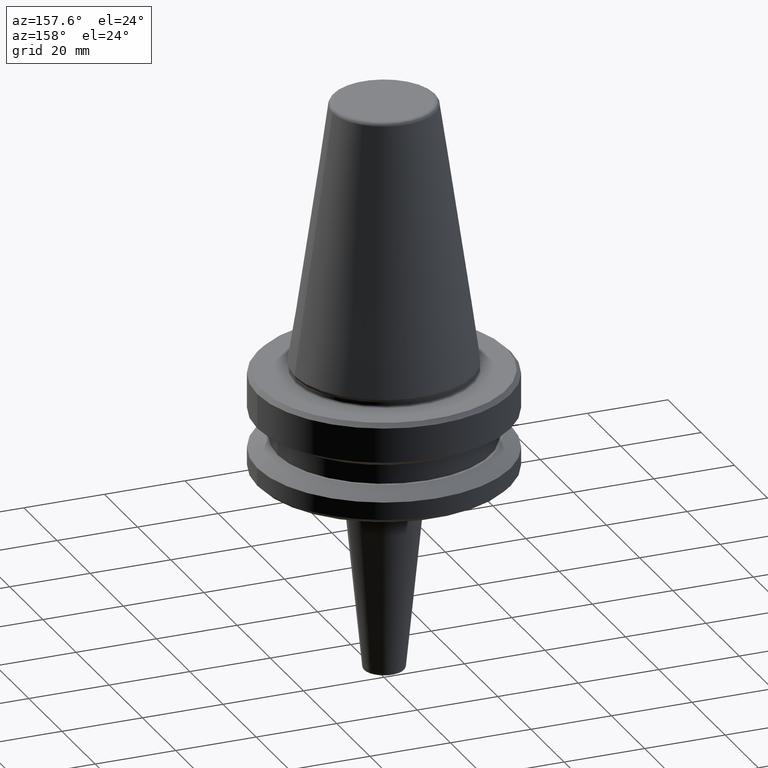
[diagram: clean part render]
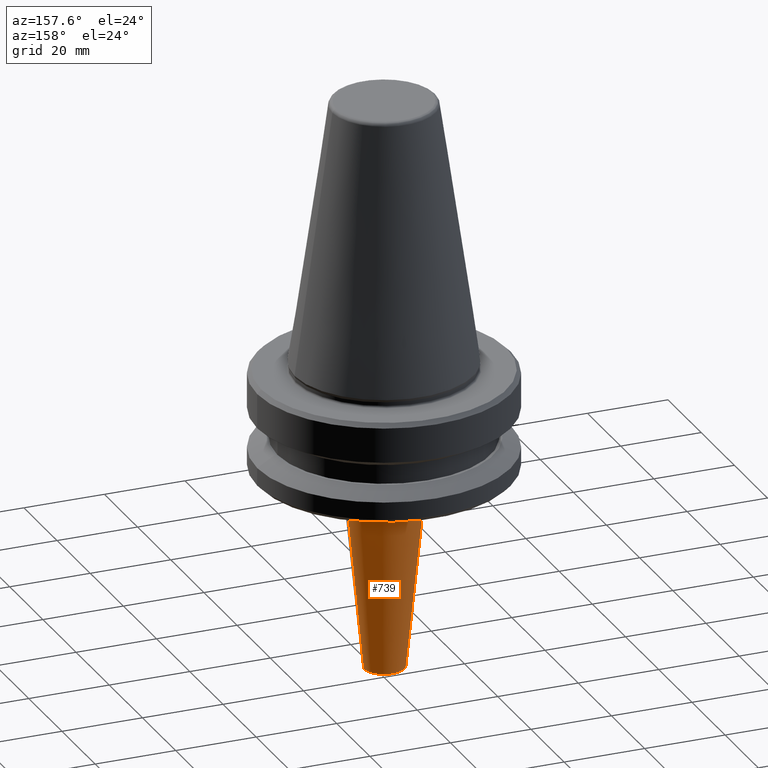
[diagram: same view with one face highlighted and labeled with its STEP entity id]
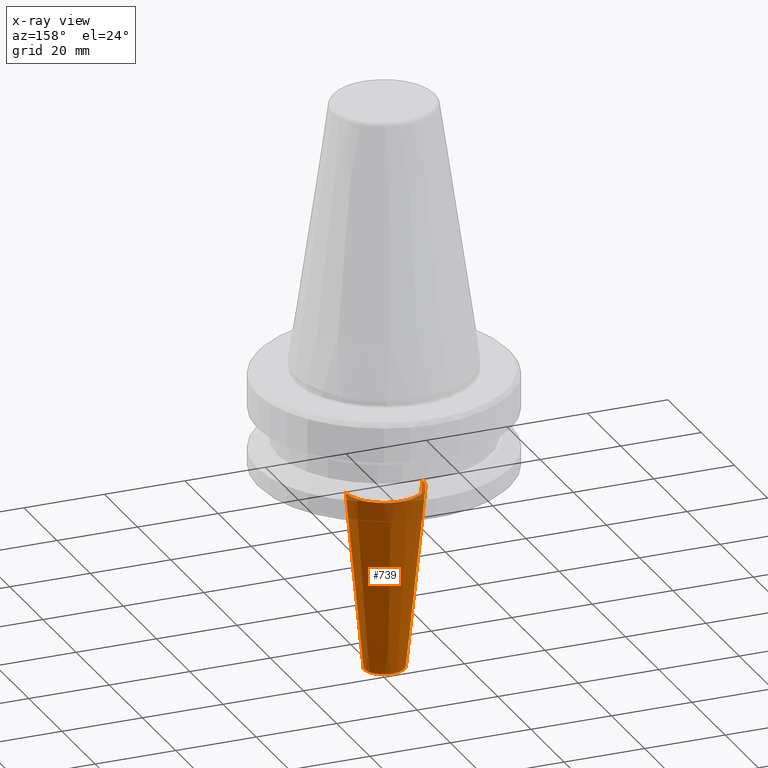
[diagram: x-ray of the same camera — body ghosted, the highlighted face saturated]
A machine part, auxiliary view. The second image highlights one B-rep face of the part: STEP entity #739.
The next image is the same camera in x-ray: the body ghosted, the highlighted face saturated — about 16% of this face is hidden behind the body in this view.
In plain terms, the highlighted conical surface has half-angle 5.711 deg.
Its self-contained STEP definition (entity closure, byte-faithful):
#12 = LINE ( 'NONE', #692, #247 ) ;
#15 = EDGE_CURVE ( 'NONE', #500, #993, #975, .T. ) ;
#17 = CARTESIAN_POINT ( 'NONE',  ( 0.0000000000000000000, 0.0000000000000000000, -96.90248140490305700 ) ) ;
#36 = VECTOR ( 'NONE', #455, 1000.000000000000100 ) ;
#45 = VERTEX_POINT ( 'NONE', #843 ) ;
#99 = EDGE_CURVE ( 'NONE', #45, #993, #243, .T. ) ;
#161 = DIRECTION ( 'NONE',  ( -0.0000000000000000000, -0.0000000000000000000, 1.000000000000000000 ) ) ;
#197 = EDGE_CURVE ( 'NONE', #708, #45, #518, .T. ) ;
#230 = ORIENTED_EDGE ( 'NONE', *, *, #462, .F. ) ;
#243 = LINE ( 'NONE', #281, #36 ) ;
#247 = VECTOR ( 'NONE', #832, 1000.000000000000100 ) ;
#281 = CARTESIAN_POINT ( 'NONE',  ( -9.549751859510500700, 1.169507304740101900E-015, -96.90248140490305700 ) ) ;
#286 = CARTESIAN_POINT ( 'NONE',  ( 0.0000000000000000000, 0.0000000000000000000, -96.90248140490305700 ) ) ;
#301 = CONICAL_SURFACE ( 'NONE', #547, 9.549751859510500700, 0.09966865249116210700 ) ;
#317 = CARTESIAN_POINT ( 'NONE',  ( 9.549751859510500700, 0.0000000000000000000, -96.90248140490305700 ) ) ;
#339 = DIRECTION ( 'NONE',  ( -0.0000000000000000000, -0.0000000000000000000, 1.000000000000000000 ) ) ;
#347 = AXIS2_PLACEMENT_3D ( 'NONE', #17, #410, #609 ) ;
#366 = AXIS2_PLACEMENT_3D ( 'NONE', #491, #339, #565 ) ;
#382 = EDGE_LOOP ( 'NONE', ( #485, #574, #751, #230 ) ) ;
#408 = DIRECTION ( 'NONE',  ( 1.000000000000000000, 0.0000000000000000000, 0.0000000000000000000 ) ) ;
#410 = DIRECTION ( 'NONE',  ( -0.0000000000000000000, -0.0000000000000000000, 1.000000000000000000 ) ) ;
#455 = DIRECTION ( 'NONE',  ( -0.09950371902099898500, 1.218569110023240100E-017, 0.9950371902099890400 ) ) ;
#462 = EDGE_CURVE ( 'NONE', #708, #500, #12, .T. ) ;
#485 = ORIENTED_EDGE ( 'NONE', *, *, #197, .T. ) ;
#491 = CARTESIAN_POINT ( 'NONE',  ( 0.0000000000000000000, 0.0000000000000000000, -141.9497518595188700 ) ) ;
#500 = VERTEX_POINT ( 'NONE', #317 ) ;
#518 = CIRCLE ( 'NONE', #366, 5.045024814048916900 ) ;
#541 = FACE_OUTER_BOUND ( 'NONE', #382, .T. ) ;
#547 = AXIS2_PLACEMENT_3D ( 'NONE', #286, #161, #408 ) ;
#565 = DIRECTION ( 'NONE',  ( 1.000000000000000000, 0.0000000000000000000, 0.0000000000000000000 ) ) ;
#574 = ORIENTED_EDGE ( 'NONE', *, *, #99, .T. ) ;
#609 = DIRECTION ( 'NONE',  ( 1.000000000000000000, 0.0000000000000000000, 0.0000000000000000000 ) ) ;
#692 = CARTESIAN_POINT ( 'NONE',  ( 9.549751859510500700, 0.0000000000000000000, -96.90248140490305700 ) ) ;
#708 = VERTEX_POINT ( 'NONE', #1054 ) ;
#739 = ADVANCED_FACE ( 'NONE', ( #541 ), #301, .T. ) ;
#751 = ORIENTED_EDGE ( 'NONE', *, *, #15, .F. ) ;
#832 = DIRECTION ( 'NONE',  ( 0.09950371902099898500, 0.0000000000000000000, 0.9950371902099890400 ) ) ;
#843 = CARTESIAN_POINT ( 'NONE',  ( -5.045024814048924900, 6.178373490143986500E-016, -141.9497518595188700 ) ) ;
#930 = CARTESIAN_POINT ( 'NONE',  ( -9.549751859510500700, 1.474149582245911800E-015, -96.90248140490305700 ) ) ;
#975 = CIRCLE ( 'NONE', #347, 9.549751859510500700 ) ;
#993 = VERTEX_POINT ( 'NONE', #930 ) ;
#1054 = CARTESIAN_POINT ( 'NONE',  ( 5.045024814048924900, 0.0000000000000000000, -141.9497518595188700 ) ) ;